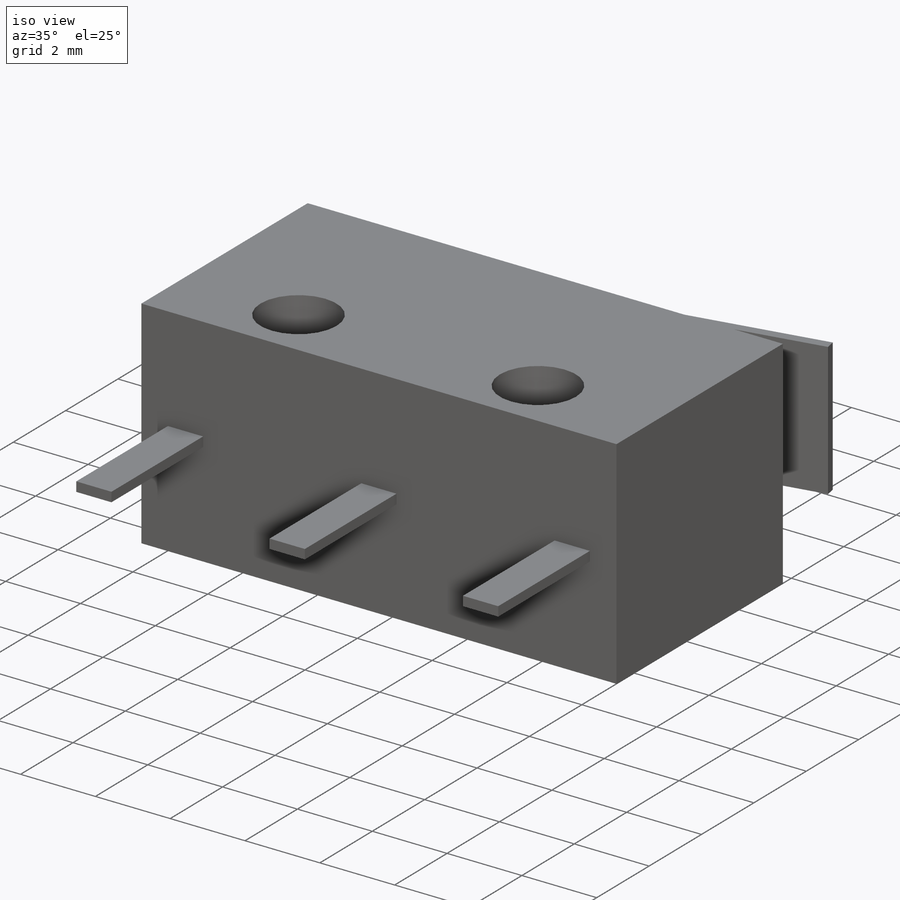
[diagram: iso view]
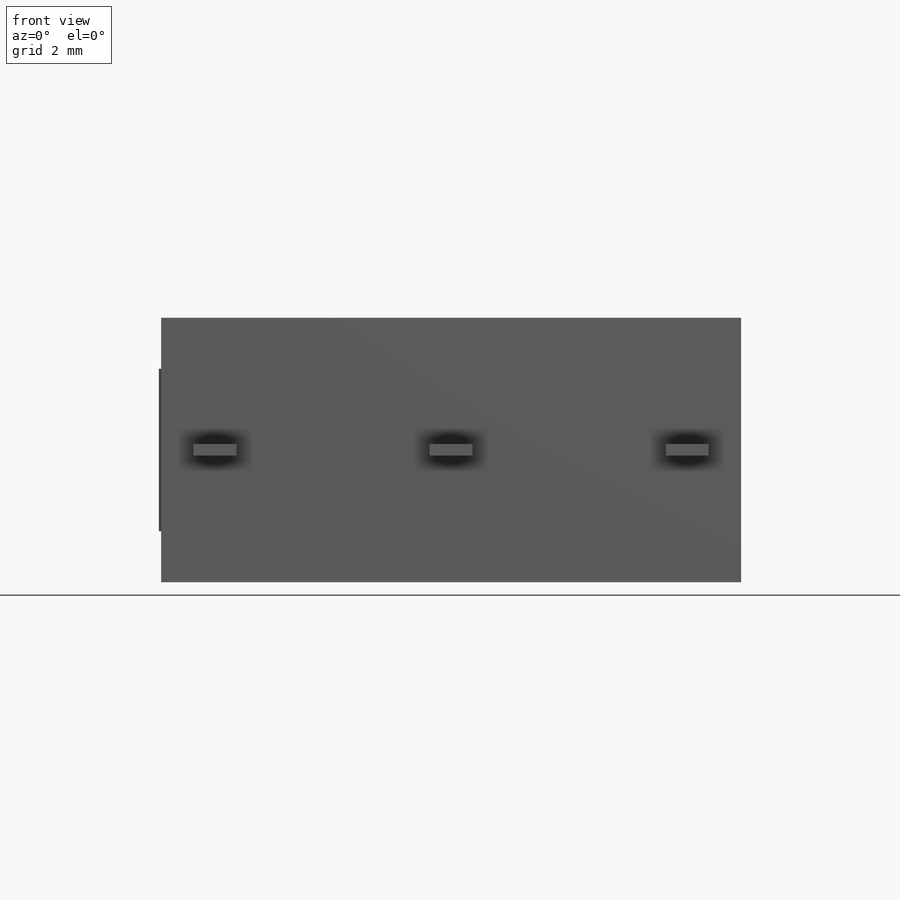
[diagram: front view]
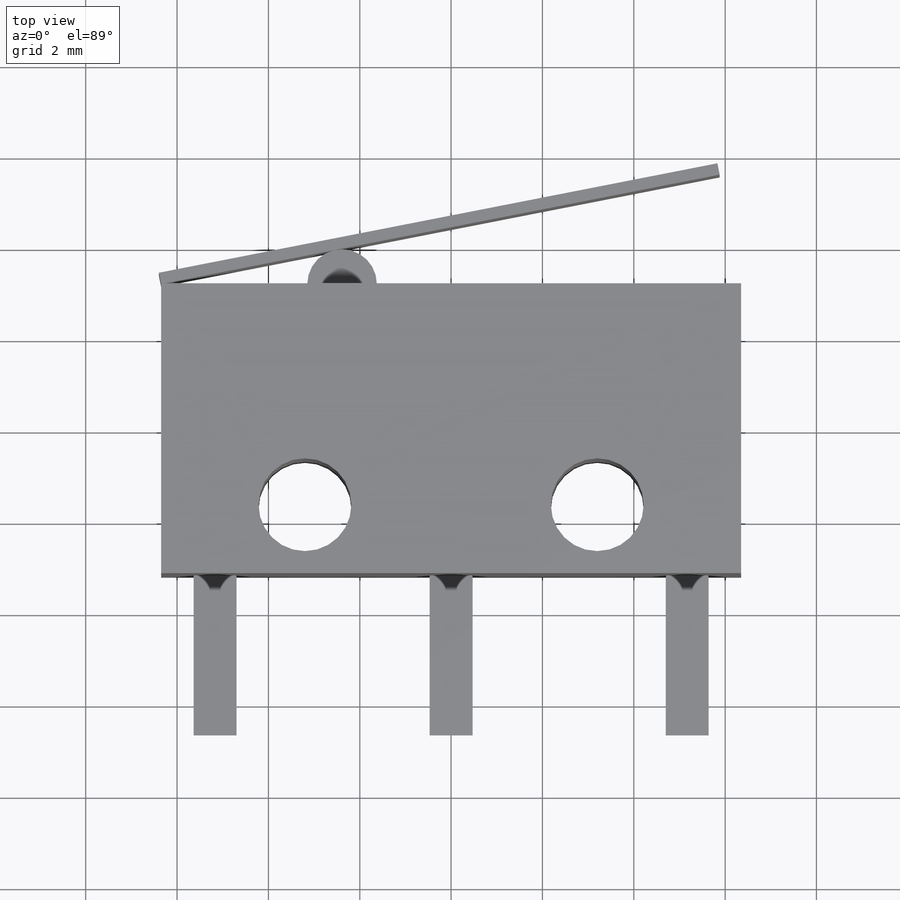
[diagram: top view]
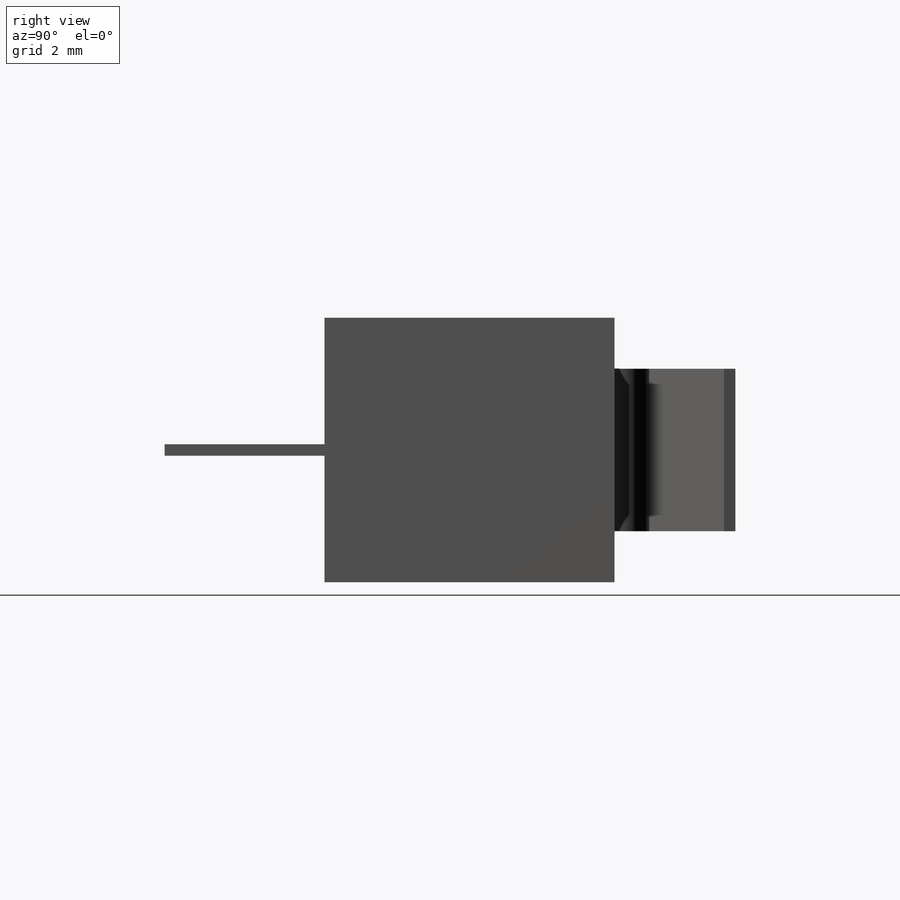
[diagram: right view]
SOLIDWORKS PART (.sldprt)
format: sldprt  version: not decoded by parser v0  size: 225,280 bytes
history: native  units: mm
features: sketch x5, extrude x4, plane x3, material x1, cut_extrude x1 (+12 scaffold rows collapsed)
feature tree (26):
  scaffold x12  (default folders/planes/origin — collapsed)
  material  "Material <not specified>"
  sketch  "Sketch1"  dims[D1=12.7mm D2=6.35mm]
  extrude  "Boss-Extrude1"  Depth=5.7912mm
  sketch  "Sketch2"  dims[c1.D2=2.032mm c1.D1=3.15mm c2.D2=6.35mm c2.D3=1.5mm]
  cut_extrude  "Cut-Extrude1"  [1 undecoded]
  plane  "Plane1"  Offset=1.1176mm
  plane  "Plane2"  Offset=1.1176mm
  sketch  "Sketch3"  dims[D2=0.762mm D1=3.9624mm]
  extrude  "Boss-Extrude2"  [1 undecoded]
  plane  "Plane3"
  sketch  "Sketch4"  dims[D1=1.1176mm D2=1.1176mm]
  extrude  "Boss-Extrude3"  Depth=0.254mm
  sketch  "Sketch5"  dims[D1=0.9398mm D2=0.254mm D3=0.7112mm]
  extrude  "Boss-Extrude4"  Depth=3.5mm
decode coverage: 8 of 10 modeling features carry decoded parameters
note: 2 parameter values undecoded
note: suppression state not decoded; provenance and decode notes live in map.json
